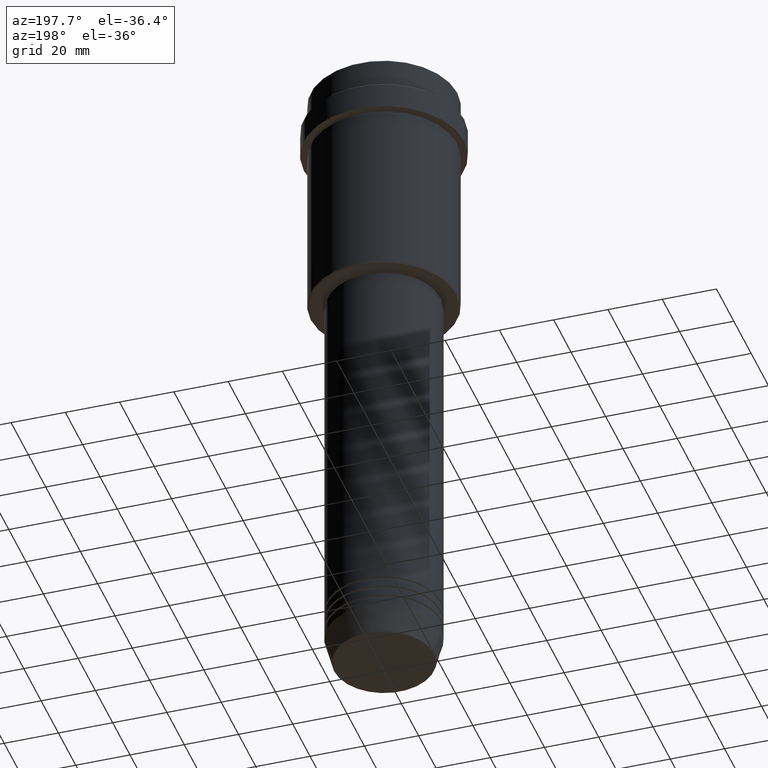
[diagram: clean part render]
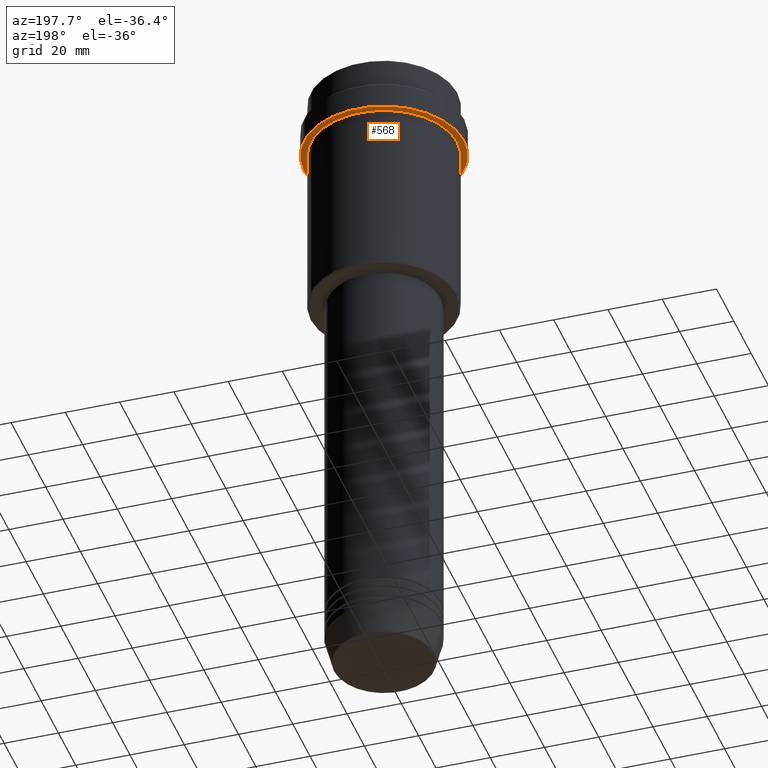
[diagram: same view with one face highlighted and labeled with its STEP entity id]
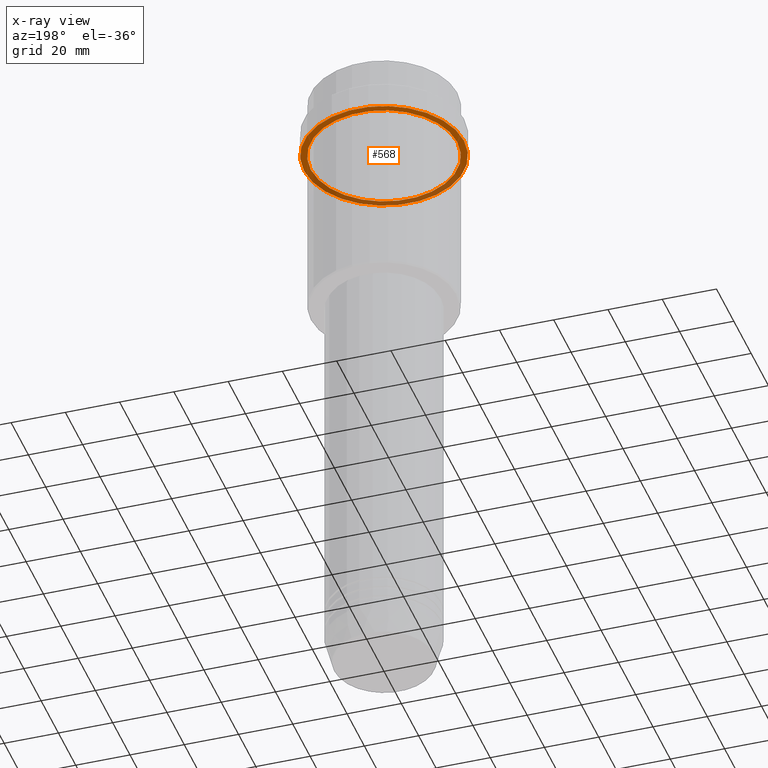
[diagram: x-ray of the same camera — body ghosted, the highlighted face saturated]
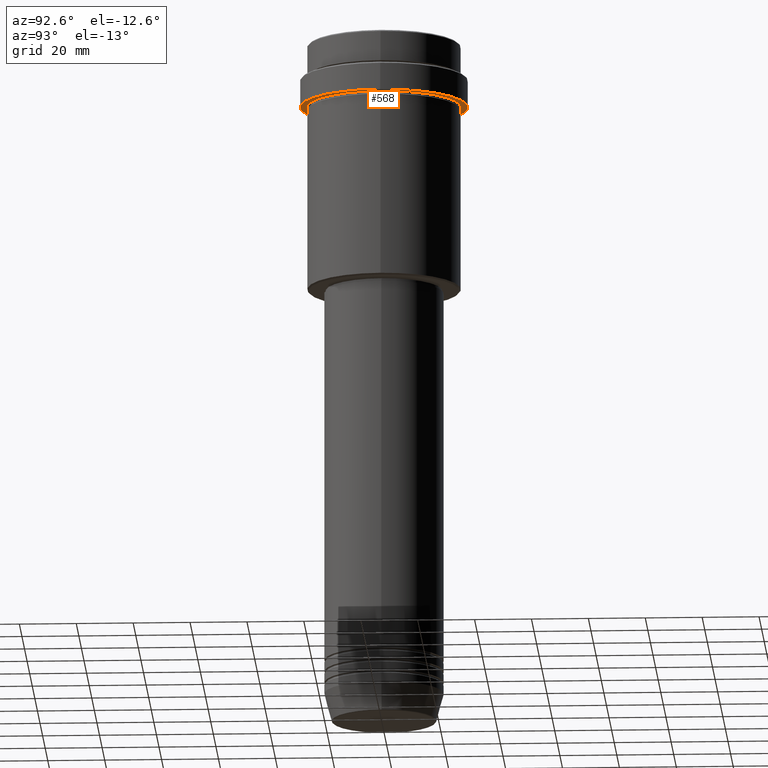
[diagram: same view with one face highlighted and labeled with its STEP entity id]
A machine part, auxiliary view. The second image highlights one B-rep face of the part: STEP entity #568.
The next image is the same camera in x-ray: the body ghosted, the highlighted face saturated — about 36% of this face is hidden behind the body in this view.
A second angle (auxiliary view) of the same face is appended — the face is thin or edge-on in the first view.
In plain terms, the highlighted planar face has unit normal (0, 0, -1).
Its self-contained STEP definition (entity closure, byte-faithful):
#13 = CIRCLE ( 'NONE', #1070, 29.49999999999999645 ) ;
#20 = EDGE_CURVE ( 'NONE', #1350, #1362, #39, .T. ) ;
#30 = VERTEX_POINT ( 'NONE', #1110 ) ;
#39 = CIRCLE ( 'NONE', #823, 26.99999999999999645 ) ;
#69 = FACE_OUTER_BOUND ( 'NONE', #785, .T. ) ;
#88 = DIRECTION ( 'NONE',  ( -0.000000000000000000, -0.000000000000000000, 1.000000000000000000 ) ) ;
#140 = CARTESIAN_POINT ( 'NONE',  ( 0.000000000000000000, 0.000000000000000000, -22.00000000000000711 ) ) ;
#141 = AXIS2_PLACEMENT_3D ( 'NONE', #267, #88, #1150 ) ;
#145 = EDGE_CURVE ( 'NONE', #30, #619, #722, .T. ) ;
#155 = CARTESIAN_POINT ( 'NONE',  ( 0.000000000000000000, 0.000000000000000000, -22.00000000000000711 ) ) ;
#173 = CIRCLE ( 'NONE', #592, 26.99999999999999645 ) ;
#238 = DIRECTION ( 'NONE',  ( -1.000000000000000000, 0.000000000000000000, 0.000000000000000000 ) ) ;
#258 = EDGE_CURVE ( 'NONE', #619, #30, #13, .T. ) ;
#267 = CARTESIAN_POINT ( 'NONE',  ( 0.000000000000000000, 0.000000000000000000, -22.00000000000000711 ) ) ;
#441 = ORIENTED_EDGE ( 'NONE', *, *, #888, .T. ) ;
#471 = ORIENTED_EDGE ( 'NONE', *, *, #258, .F. ) ;
#473 = DIRECTION ( 'NONE',  ( -1.000000000000000000, 0.000000000000000000, 0.000000000000000000 ) ) ;
#568 = ADVANCED_FACE ( 'NONE', ( #1158, #69 ), #1048, .T. ) ;
#592 = AXIS2_PLACEMENT_3D ( 'NONE', #140, #1015, #238 ) ;
#619 = VERTEX_POINT ( 'NONE', #1280 ) ;
#633 = ORIENTED_EDGE ( 'NONE', *, *, #20, .T. ) ;
#658 = CARTESIAN_POINT ( 'NONE',  ( 0.000000000000000000, 0.000000000000000000, -22.00000000000000711 ) ) ;
#714 = DIRECTION ( 'NONE',  ( 0.000000000000000000, 0.000000000000000000, -1.000000000000000000 ) ) ;
#722 = CIRCLE ( 'NONE', #141, 29.49999999999999645 ) ;
#785 = EDGE_LOOP ( 'NONE', ( #819, #471 ) ) ;
#792 = CARTESIAN_POINT ( 'NONE',  ( 26.99999999999999645, 3.306546357697853339E-15, -22.00000000000000711 ) ) ;
#819 = ORIENTED_EDGE ( 'NONE', *, *, #145, .F. ) ;
#823 = AXIS2_PLACEMENT_3D ( 'NONE', #155, #1138, #473 ) ;
#834 = CARTESIAN_POINT ( 'NONE',  ( 0.000000000000000000, 29.49999999999999645, -22.00000000000000711 ) ) ;
#888 = EDGE_CURVE ( 'NONE', #1362, #1350, #173, .T. ) ;
#1015 = DIRECTION ( 'NONE',  ( -0.000000000000000000, -0.000000000000000000, 1.000000000000000000 ) ) ;
#1026 = DIRECTION ( 'NONE',  ( -1.000000000000000000, 0.000000000000000000, -0.000000000000000000 ) ) ;
#1048 = PLANE ( 'NONE',  #1123 ) ;
#1070 = AXIS2_PLACEMENT_3D ( 'NONE', #658, #1193, #1415 ) ;
#1106 = EDGE_LOOP ( 'NONE', ( #633, #441 ) ) ;
#1110 = CARTESIAN_POINT ( 'NONE',  ( 29.49999999999999645, 0.000000000000000000, -22.00000000000000711 ) ) ;
#1123 = AXIS2_PLACEMENT_3D ( 'NONE', #834, #714, #1026 ) ;
#1138 = DIRECTION ( 'NONE',  ( -0.000000000000000000, -0.000000000000000000, 1.000000000000000000 ) ) ;
#1150 = DIRECTION ( 'NONE',  ( 1.000000000000000000, 0.000000000000000000, 0.000000000000000000 ) ) ;
#1158 = FACE_BOUND ( 'NONE', #1106, .T. ) ;
#1193 = DIRECTION ( 'NONE',  ( -0.000000000000000000, -0.000000000000000000, 1.000000000000000000 ) ) ;
#1236 = CARTESIAN_POINT ( 'NONE',  ( -26.99999999999999645, 0.000000000000000000, -22.00000000000000711 ) ) ;
#1280 = CARTESIAN_POINT ( 'NONE',  ( -29.49999999999999645, 3.612708057484690815E-15, -22.00000000000000711 ) ) ;
#1350 = VERTEX_POINT ( 'NONE', #1236 ) ;
#1362 = VERTEX_POINT ( 'NONE', #792 ) ;
#1415 = DIRECTION ( 'NONE',  ( 1.000000000000000000, 0.000000000000000000, 0.000000000000000000 ) ) ;